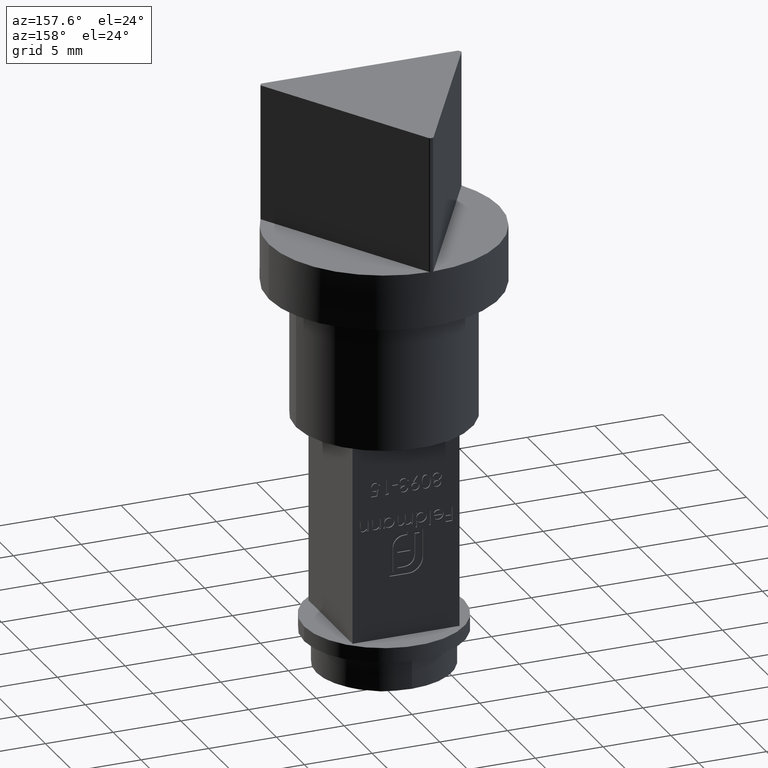
[diagram: clean part render]
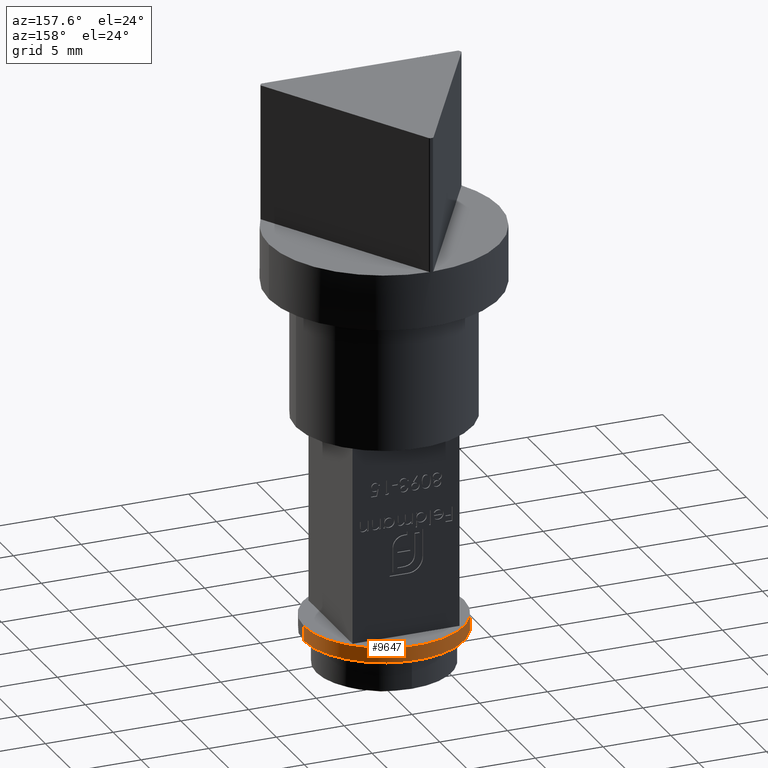
[diagram: same view with one face highlighted and labeled with its STEP entity id]
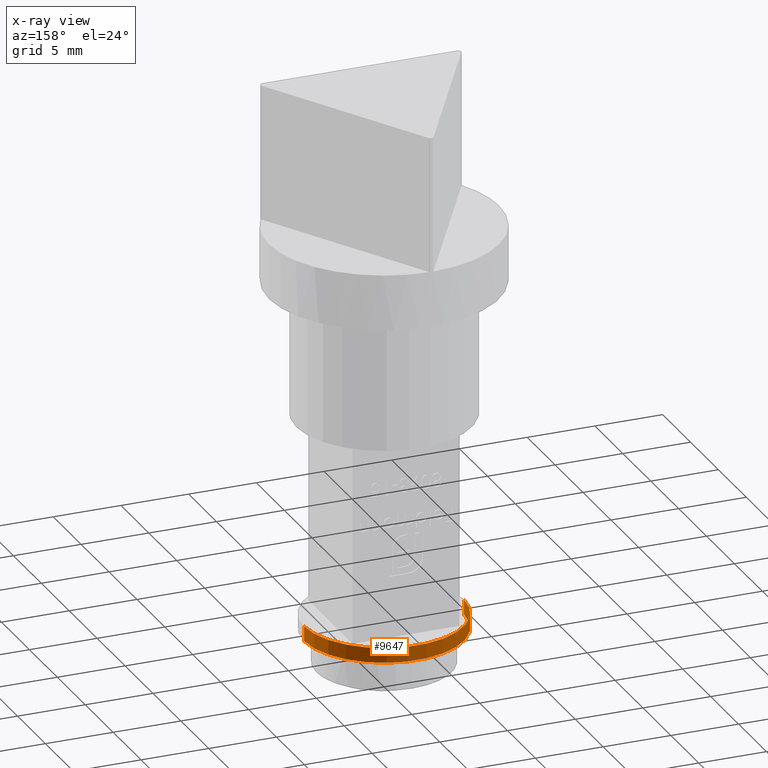
[diagram: x-ray of the same camera — body ghosted, the highlighted face saturated]
A machine part, auxiliary view. The second image highlights one B-rep face of the part: STEP entity #9647.
The next image is the same camera in x-ray: the body ghosted, the highlighted face saturated — about 0% of this face is hidden behind the body in this view.
In plain terms, the highlighted cylindrical surface (partial cylindrical patch) has radius 5.9 mm, axis along (-0, -0, -1).
Its self-contained STEP definition (entity closure, byte-faithful):
#1266 = CARTESIAN_POINT ( 'NONE',  ( 0.000000000000000000, 0.000000000000000000, -0.5500000000000000444 ) ) ;
#2385 = ORIENTED_EDGE ( 'NONE', *, *, #8499, .T. ) ;
#2415 = CARTESIAN_POINT ( 'NONE',  ( -5.900000000000001243, 0.000000000000000000, 0.5500000000000000444 ) ) ;
#2598 = CIRCLE ( 'NONE', #14360, 5.900000000000001243 ) ;
#2835 = CARTESIAN_POINT ( 'NONE',  ( 0.000000000000000000, 0.000000000000000000, 0.5500000000000000444 ) ) ;
#2948 = DIRECTION ( 'NONE',  ( 0.000000000000000000, 0.000000000000000000, 1.000000000000000000 ) ) ;
#3734 = AXIS2_PLACEMENT_3D ( 'NONE', #1266, #2948, #13916 ) ;
#4305 = VECTOR ( 'NONE', #7507, 1000.000000000000000 ) ;
#5059 = VERTEX_POINT ( 'NONE', #8972 ) ;
#5102 = EDGE_CURVE ( 'NONE', #11288, #8345, #12403, .T. ) ;
#5255 = CYLINDRICAL_SURFACE ( 'NONE', #13510, 5.900000000000001243 ) ;
#6500 = VECTOR ( 'NONE', #13270, 1000.000000000000000 ) ;
#7507 = DIRECTION ( 'NONE',  ( -0.000000000000000000, -0.000000000000000000, -1.000000000000000000 ) ) ;
#7993 = VERTEX_POINT ( 'NONE', #14895 ) ;
#8345 = VERTEX_POINT ( 'NONE', #10784 ) ;
#8499 = EDGE_CURVE ( 'NONE', #7993, #5059, #14299, .T. ) ;
#8972 = CARTESIAN_POINT ( 'NONE',  ( 5.900000000000001243, 7.225416114969385180E-16, -0.5500000000000000444 ) ) ;
#9158 = DIRECTION ( 'NONE',  ( 0.000000000000000000, 0.000000000000000000, 1.000000000000000000 ) ) ;
#9203 = EDGE_CURVE ( 'NONE', #5059, #8345, #14433, .T. ) ;
#9647 = ADVANCED_FACE ( 'NONE', ( #15224 ), #5255, .T. ) ;
#9671 = ORIENTED_EDGE ( 'NONE', *, *, #14031, .F. ) ;
#10784 = CARTESIAN_POINT ( 'NONE',  ( -5.900000000000001243, 0.000000000000000000, -0.5500000000000000444 ) ) ;
#10919 = ORIENTED_EDGE ( 'NONE', *, *, #5102, .F. ) ;
#11288 = VERTEX_POINT ( 'NONE', #2415 ) ;
#11367 = CARTESIAN_POINT ( 'NONE',  ( 5.900000000000001243, 7.225416114969385180E-16, 0.5500000000000000444 ) ) ;
#11922 = CARTESIAN_POINT ( 'NONE',  ( 0.000000000000000000, 0.000000000000000000, 0.5500000000000000444 ) ) ;
#12044 = CARTESIAN_POINT ( 'NONE',  ( -5.900000000000001243, 0.000000000000000000, 0.5500000000000000444 ) ) ;
#12403 = LINE ( 'NONE', #12044, #6500 ) ;
#12404 = EDGE_LOOP ( 'NONE', ( #9671, #2385, #14650, #10919 ) ) ;
#13270 = DIRECTION ( 'NONE',  ( -0.000000000000000000, -0.000000000000000000, -1.000000000000000000 ) ) ;
#13510 = AXIS2_PLACEMENT_3D ( 'NONE', #2835, #15379, #14279 ) ;
#13916 = DIRECTION ( 'NONE',  ( 1.000000000000000000, 0.000000000000000000, 0.000000000000000000 ) ) ;
#14031 = EDGE_CURVE ( 'NONE', #7993, #11288, #2598, .T. ) ;
#14279 = DIRECTION ( 'NONE',  ( -1.000000000000000000, 0.000000000000000000, 0.000000000000000000 ) ) ;
#14285 = DIRECTION ( 'NONE',  ( 1.000000000000000000, 0.000000000000000000, 0.000000000000000000 ) ) ;
#14299 = LINE ( 'NONE', #11367, #4305 ) ;
#14360 = AXIS2_PLACEMENT_3D ( 'NONE', #11922, #9158, #14285 ) ;
#14433 = CIRCLE ( 'NONE', #3734, 5.900000000000001243 ) ;
#14650 = ORIENTED_EDGE ( 'NONE', *, *, #9203, .T. ) ;
#14895 = CARTESIAN_POINT ( 'NONE',  ( 5.900000000000001243, 7.225416114969385180E-16, 0.5500000000000000444 ) ) ;
#15224 = FACE_OUTER_BOUND ( 'NONE', #12404, .T. ) ;
#15379 = DIRECTION ( 'NONE',  ( -0.000000000000000000, -0.000000000000000000, -1.000000000000000000 ) ) ;